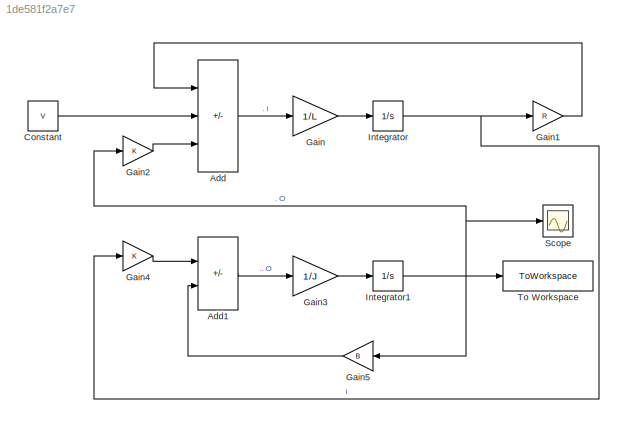
MODEL slx_1de581f2a7e7
KIND model
CONFIG AbsTol = auto
CONFIG EnableMultiTasking = off
CONFIG FixedStep = auto
CONFIG MaxStep = auto
CONFIG MinStep = auto
CONFIG RelTol = 1e-3
CONFIG SampleTimeConstraint = Unconstrained
CONFIG SolverName = ode45
CONFIG StartTime = 0.0
CONFIG StopTime = 5
BLOCK [Sum] Add
  IconShape = rectangular
  Inputs = -+-
BLOCK [Sum] Add1
  IconShape = rectangular
  Inputs = +-
BLOCK [Constant] Constant
  Value = V
BLOCK [Gain] Gain
  Gain = 1/L
BLOCK [Gain] Gain1
  Gain = R
BLOCK [Gain] Gain2
  Gain = K
BLOCK [Gain] Gain3
  Gain = 1/J
BLOCK [Gain] Gain4
  Gain = K
BLOCK [Gain] Gain5
  Gain = B
  NameLocation = top
BLOCK [Integrator] Integrator
BLOCK [Integrator] Integrator1
BLOCK [Scope] Scope
  Floating = off
  NumInputPorts = 1
  ScopeSpecificationString = Simulink.scopes.TimeScopeBlockCfg('CurrentConfiguration', extmgr.ConfigurationSet(extmgr.Configuration('Core','General UI',true),extmgr.Configuration('Core','Source UI',true),extmgr.Configuration('Sources','WiredSimulink',true),extmgr.Configuration('Visuals','Time Domain',true),extmgr.Configuration('Tools','Plot Navigation',true),extmgr.Configuration('Tools','Measurements',true)),'Version','2024b'...<+1ch>
BLOCK [ToWorkspace] To Workspace
  FixptAsFi = on
  MaxDataPoints = inf
  SampleTime = -1
  SaveFormat = Structure With Time
  VariableName = w
LINE Add1:1 -> Gain3:1
LINE Add:1 -> Gain:1
LINE Constant:1 -> Add:2
LINE Gain1:1 -> Add:1
LINE Gain2:1 -> Add:3
LINE Gain3:1 -> Integrator1:1
LINE Gain4:1 -> Add1:1
LINE Gain5:1 -> Add1:2
LINE Gain:1 -> Integrator:1
NET Integrator1:1 -> Gain2:1, Gain5:1, Scope:1, To Workspace:1
NET Integrator:1 -> Gain1:1, Gain4:1
note: NET lines group one-source signal fan-out (src -> all destinations, sorted); 1:1 wires keep LINE
